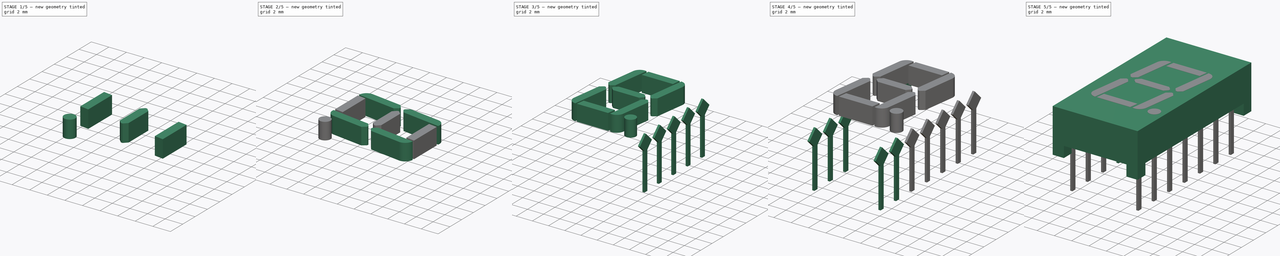
[diagram: build sequence overview — one tinted view per stage of 5, left to right]
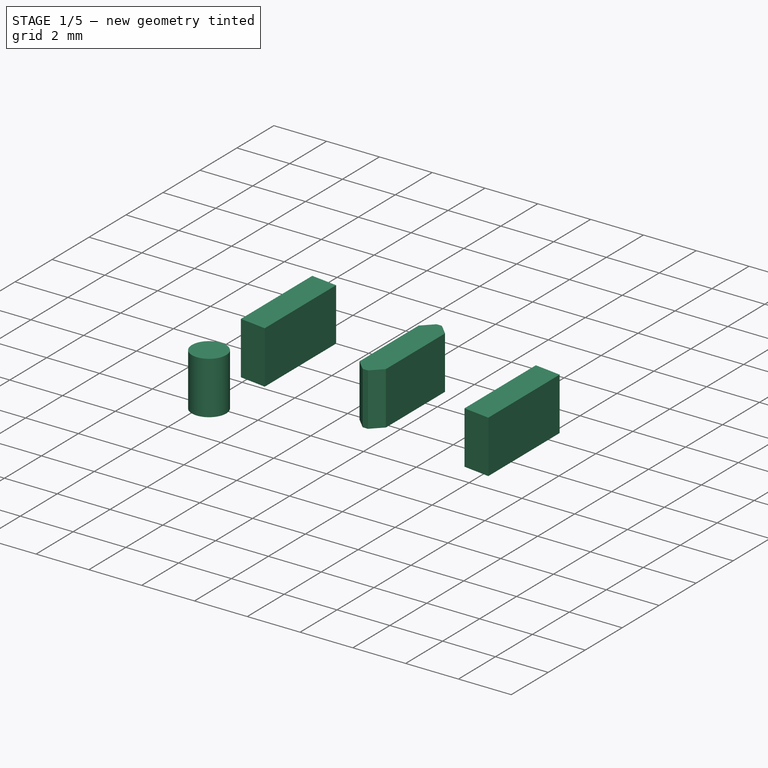
[diagram: stage 1 of 5 — iso view after this stage's code; geometry added in this stage tinted green]
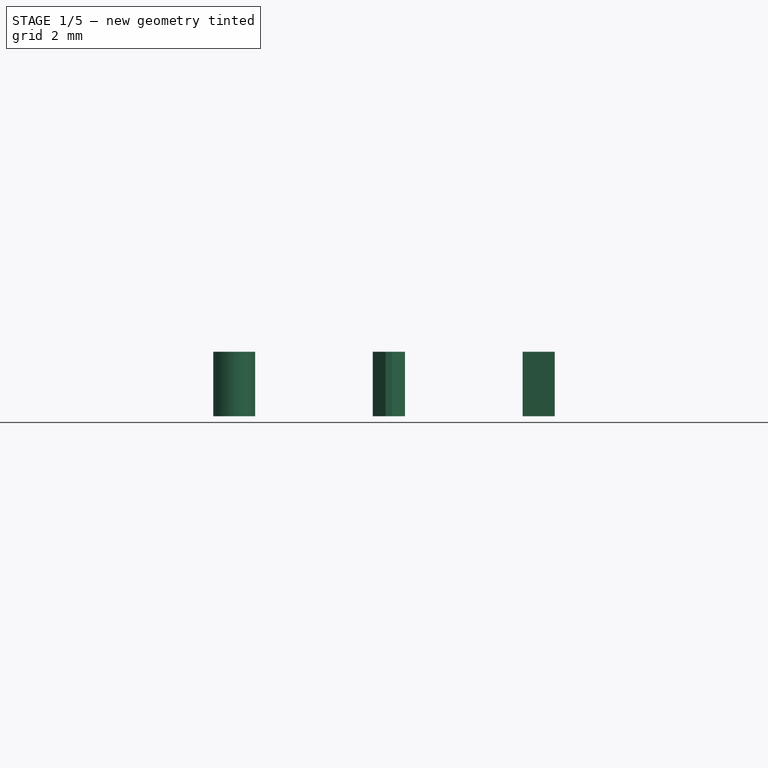
[diagram: stage 1 of 5 — front view after this stage's code; geometry added in this stage tinted green]
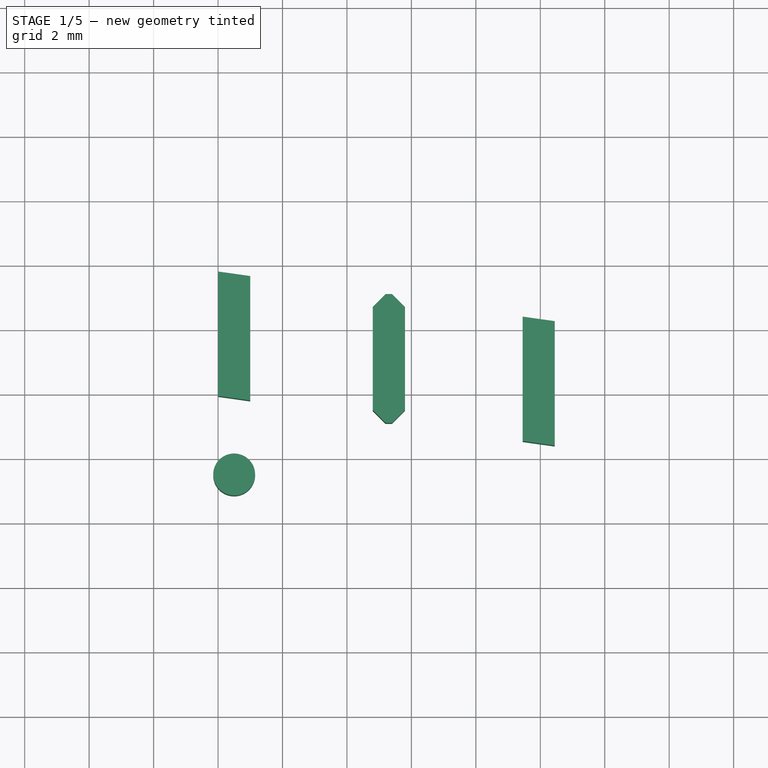
[diagram: stage 1 of 5 — top view after this stage's code; geometry added in this stage tinted green]
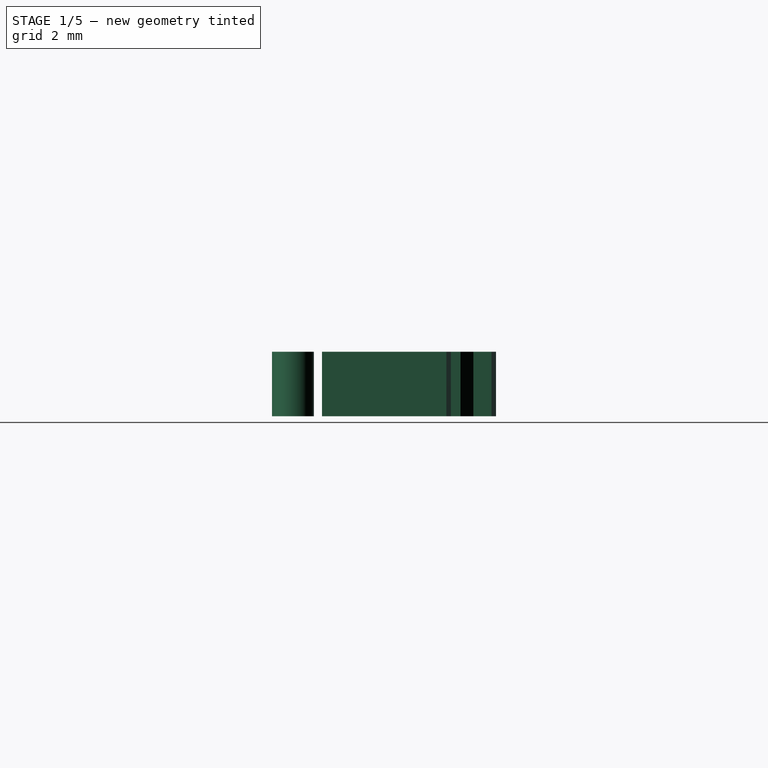
[diagram: stage 1 of 5 — right view after this stage's code; geometry added in this stage tinted green]
FCSTD DOCUMENT  (FreeCAD 0.17R11223 (Git))
Label: MANXXXX_A_2
License: All rights reserved
LicenseURL: http://en.wikipedia.org/wiki/All_rights_reserved
objects: Part::Box×41, Part::MultiFuse×15, Part::Chamfer×12, Part::Cut×6, Part::Fillet×4, Sketcher::SketchObject×1, PartDesign::Pad×1, PartDesign::Body×1, App::DocumentObjectGroup×1, Part::Cylinder×1
note: 83 computed .brp shape members not serialized (recipe doc carries the construction recipe); baked Part::Feature solids carry a one-line shape summary decoded from their .brp

FEATURE [Part::Box] Box034  label="Kub034"
  AttacherType = Attacher::AttachEngine3D
  Height = 2
  Length = 1
  Placement = pos=(-4,14,0) rot=(0,0,1;0rad)
  Width = 4
FEATURE [Part::Box] Box035  label="Kub035"
  AttacherType = Attacher::AttachEngine3D
  Height = 2
  Length = 3
  Placement = pos=(-5,18.14,0) rot=(0,0,-1;0.139626rad)
  Width = 1
FEATURE [Part::Box] Box036  label="Kub036"
  AttacherType = Attacher::AttachEngine3D
  Height = 2
  Length = 3
  Placement = pos=(-5,13.27,0) rot=(0,0,-1;0.139626rad)
  Width = 1
FEATURE [Part::Box] Box037  label="Kub037"
  AttacherType = Attacher::AttachEngine3D
  Height = 2
  Length = 1
  Placement = pos=(-10,14,0) rot=(0,0,1;0rad)
  Width = 4
FEATURE [Part::Cut] Cut002
  Base = -> Box034
  Tool = -> Box036
FEATURE [Part::Cut] Cut003
  Base = -> Cut002
  Placement = pos=(4,-0.2,0) rot=(0,0,1;0rad)
  Tool = -> Box035
FEATURE [Part::Box] Box038  label="Kub038"
  AttacherType = Attacher::AttachEngine3D
  Height = 2
  Length = 1
  Placement = pos=(-4,14,0) rot=(0,0,1;0rad)
  Width = 4
FEATURE [Part::Box] Box039  label="Kub039"
  AttacherType = Attacher::AttachEngine3D
  Height = 2
  Length = 3
  Placement = pos=(-5,18.14,0) rot=(0,0,-1;0.139626rad)
  Width = 1
FEATURE [Part::Box] Box040  label="Kub040"
  AttacherType = Attacher::AttachEngine3D
  Height = 2
  Length = 3
  Placement = pos=(-5,13.27,0) rot=(0,0,-1;0.139626rad)
  Width = 1
FEATURE [Part::Cut] Cut004
  Base = -> Box038
  Tool = -> Box040
FEATURE [Part::Cut] Cut005
  Base = -> Cut004
  Placement = pos=(13.45,-1.6,0) rot=(0,0,1;0rad)
  Tool = -> Box039
FEATURE [Part::Chamfer] Chamfer012
  Base = -> Box037
  Edges = 1 edges r=0.4: [Edge5]
FEATURE [Part::Chamfer] Chamfer013
  Base = -> Chamfer012
  Edges = 1 edges r=0.4: [Edge3]
FEATURE [Part::Chamfer] Chamfer014
  Base = -> Chamfer013
  Edges = 1 edges r=0.4: [Edge18]
FEATURE [Part::Chamfer] Chamfer015
  Base = -> Chamfer014
  Edges = 1 edges r=0.4: [Edge15]
  Placement = pos=(14.8,-0.9,0) rot=(0,0,1;0rad)
FEATURE [Part::Cylinder] Cylinder016  label="Cylinder"
  Angle = 360
  AttacherType = Attacher::AttachEngine3D
  Height = 2
  Placement = pos=(0.5,11.5,0) rot=(0,0,1;0rad)
  Radius = 0.65
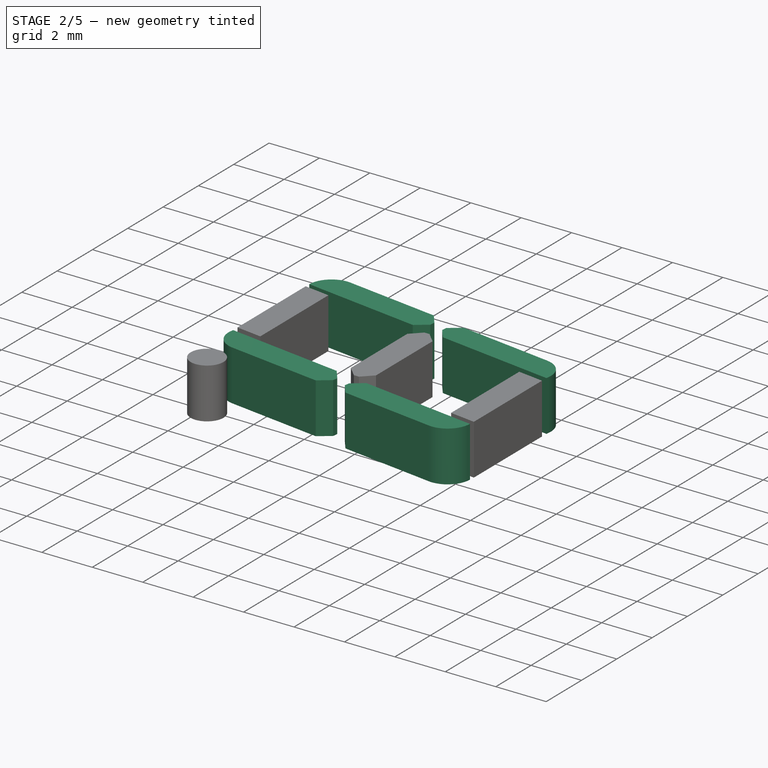
[diagram: stage 2 of 5 — iso view after this stage's code; geometry added in this stage tinted green]
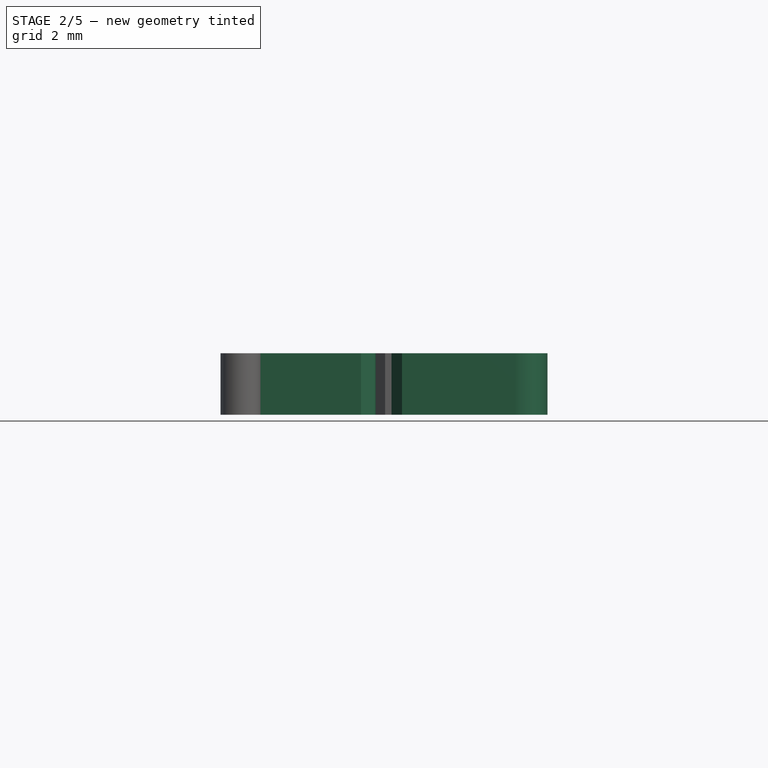
[diagram: stage 2 of 5 — front view after this stage's code; geometry added in this stage tinted green]
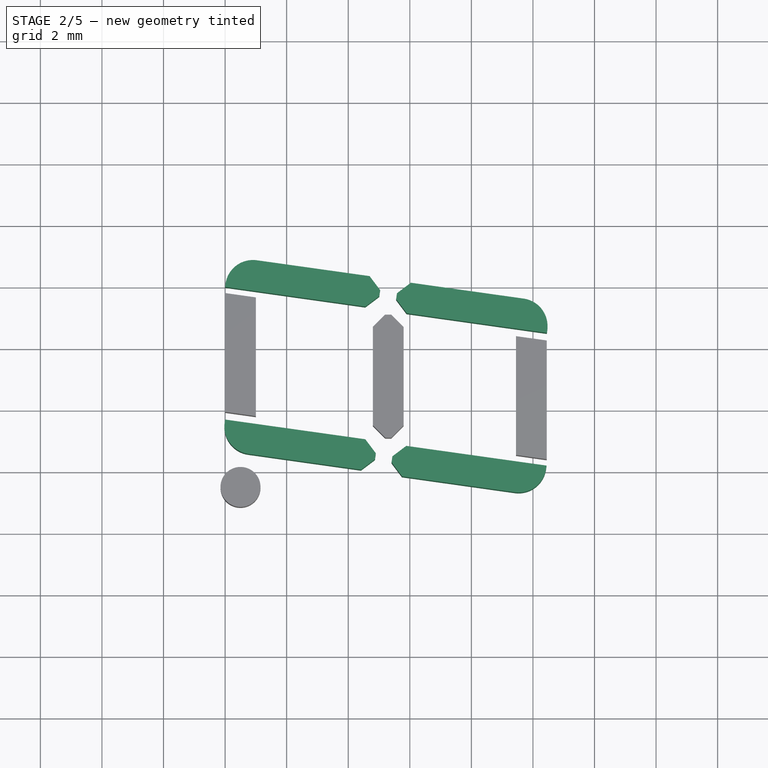
[diagram: stage 2 of 5 — top view after this stage's code; geometry added in this stage tinted green]
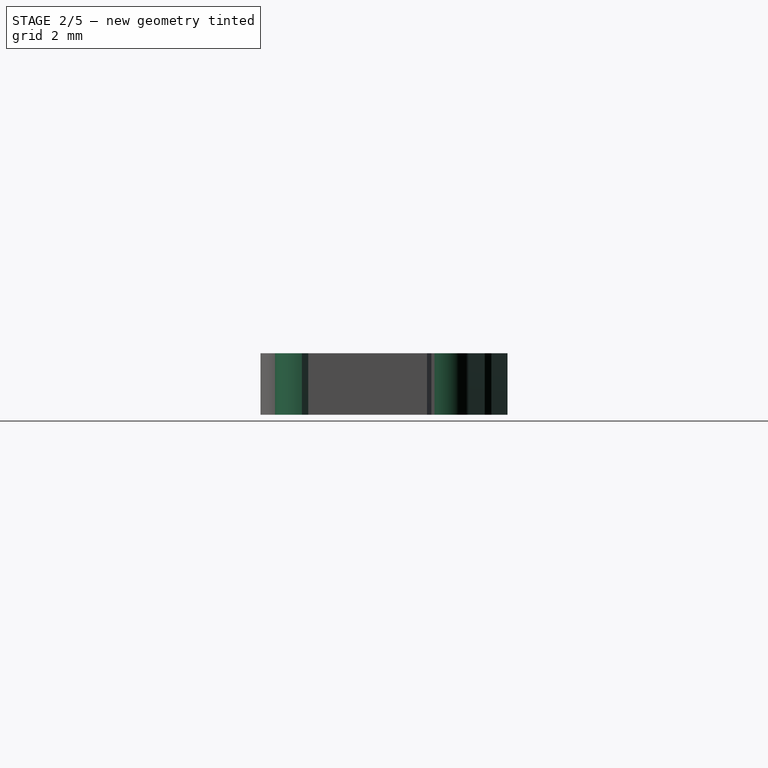
[diagram: stage 2 of 5 — right view after this stage's code; geometry added in this stage tinted green]
FEATURE [App::DocumentObjectGroup] Grupp  label="Legs"
  Group = -> [Fusion,Fusion001,Fusion002,Fusion003,Fusion004,Fusion005,Fusion006,Fusion007,Fusion008,Fusion009,Fusion010,Fusion011,Fusion012,Fusion013]
FEATURE [Part::Box] Box030  label="Kub030"
  AttacherType = Attacher::AttachEngine3D
  Height = 2
  Length = 5
  Placement = pos=(0,18,0) rot=(0,0,-1;0.139626rad)
  Width = 1
FEATURE [Part::Box] Box031  label="Kub031"
  AttacherType = Attacher::AttachEngine3D
  Height = 2
  Length = 5
  Placement = pos=(0,13,0) rot=(0,0,-1;0.139626rad)
  Width = 1
FEATURE [Part::Box] Box032  label="Kub032"
  AttacherType = Attacher::AttachEngine3D
  Height = 2
  Length = 5
  Placement = pos=(9,18,0) rot=(0,0,-1;0.139626rad)
  Width = 1
FEATURE [Part::Box] Box033  label="Kub033"
  AttacherType = Attacher::AttachEngine3D
  Height = 2
  Length = 5
  Placement = pos=(9,13,0) rot=(0,0,-1;0.139626rad)
  Width = 1
FEATURE [Part::Chamfer] Chamfer004
  Base = -> Box032
  Edges = 1 edges r=0.4: [Edge1]
FEATURE [Part::Chamfer] Chamfer005
  Base = -> Chamfer004
  Edges = 1 edges r=0.4: [Edge3]
FEATURE [Part::Chamfer] Chamfer006
  Base = -> Box033
  Edges = 1 edges r=0.4: [Edge3]
FEATURE [Part::Chamfer] Chamfer007
  Base = -> Chamfer006
  Edges = 1 edges r=0.4: [Edge3]
FEATURE [Part::Chamfer] Chamfer008
  Base = -> Box031
  Edges = 1 edges r=0.4: [Edge5]
FEATURE [Part::Chamfer] Chamfer009
  Base = -> Chamfer008
  Edges = 1 edges r=0.4: [Edge3]
FEATURE [Part::Chamfer] Chamfer010
  Base = -> Box030
  Edges = 1 edges r=0.4: [Edge5]
FEATURE [Part::Chamfer] Chamfer011
  Base = -> Chamfer010
  Edges = 1 edges r=0.4: [Edge3]
FEATURE [Part::Fillet] Fillet
  Base = -> Chamfer005
  Edges = 1 edges r=0.9: [Edge17]
  Placement = pos=(-3.5,-0.8,0) rot=(0,0,1;0rad)
FEATURE [Part::Fillet] Fillet001
  Base = -> Chamfer007
  Edges = 1 edges r=0.9: [Edge17]
  Placement = pos=(-3.65,-1.1,0) rot=(0,0,1;0rad)
FEATURE [Part::Fillet] Fillet002
  Base = -> Chamfer009
  Edges = 1 edges r=0.9: [Edge18]
  Placement = pos=(-0.14,-0.3,0) rot=(0,0,1;0rad)
FEATURE [Part::Fillet] Fillet003
  Base = -> Chamfer011
  Edges = 1 edges r=0.9: [Edge17]
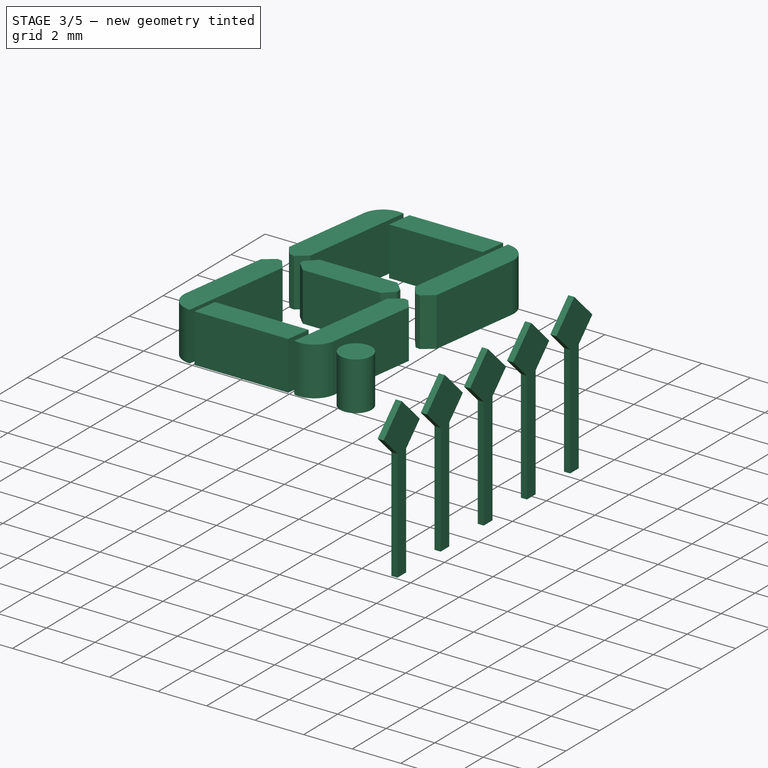
[diagram: stage 3 of 5 — iso view after this stage's code; geometry added in this stage tinted green]
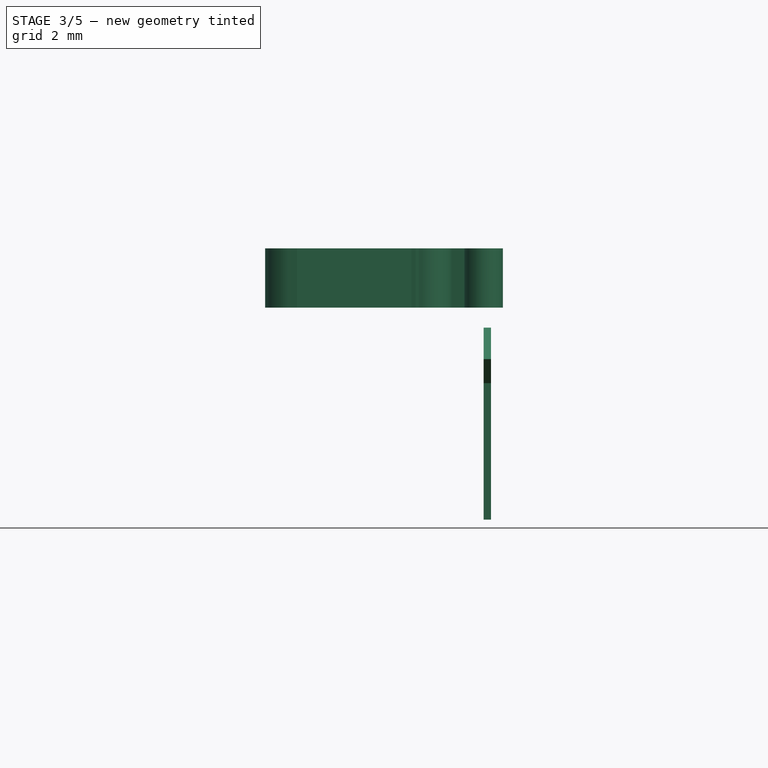
[diagram: stage 3 of 5 — front view after this stage's code; geometry added in this stage tinted green]
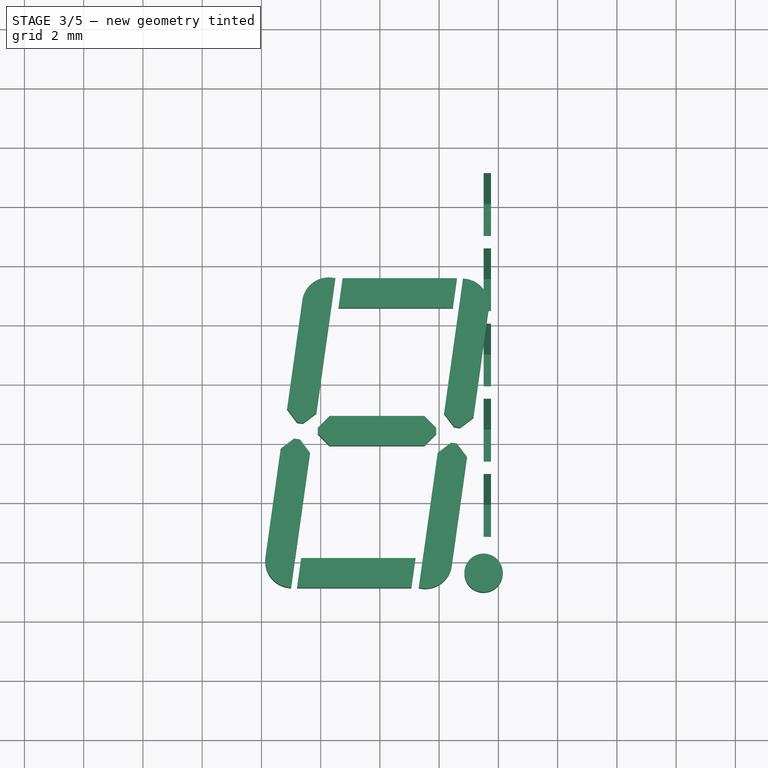
[diagram: stage 3 of 5 — top view after this stage's code; geometry added in this stage tinted green]
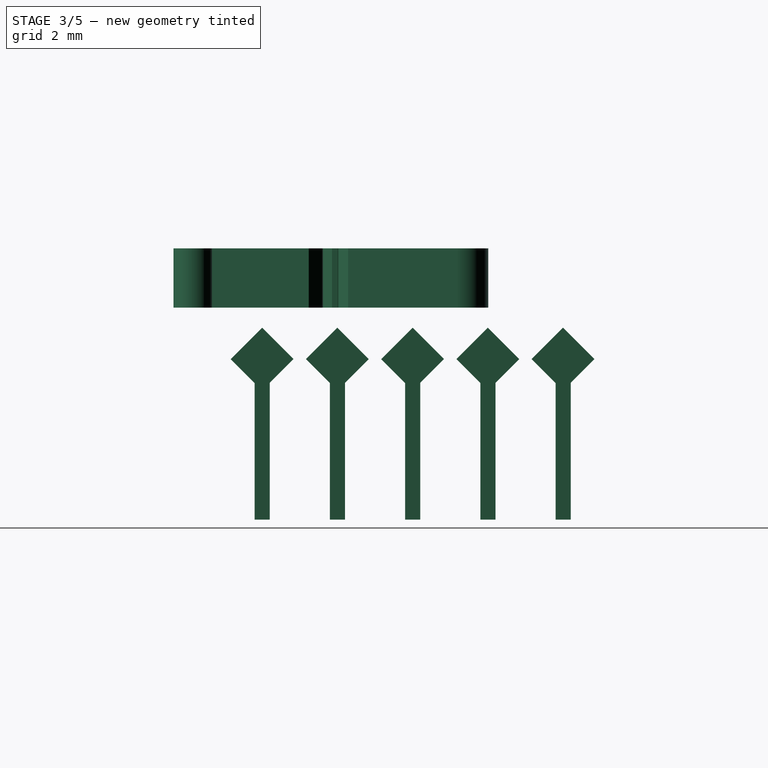
[diagram: stage 3 of 5 — right view after this stage's code; geometry added in this stage tinted green]
FEATURE [Part::Box] Box020  label="Kub020"
  AttacherType = Attacher::AttachEngine3D
  Height = 6
  Length = 0.25
  Placement = pos=(-0.12,-0.2505,-4.06) rot=(0,0,1;0rad)
  Width = 0.51
FEATURE [Part::Box] Box021  label="Kub021"
  AttacherType = Attacher::AttachEngine3D
  Height = 1.5
  Length = 0.25
  Placement = pos=(-0.12,0,0.3) rot=(1,0,0;0.785398rad)
  Width = 1.5
FEATURE [Part::MultiFuse] Fusion009  label="Leg010"
  Placement = pos=(7.62,-10.16,0) rot=(0,0,1;0rad)
  Shapes = -> [Box020,Box021]
FEATURE [Part::Box] Box022  label="Kub022"
  AttacherType = Attacher::AttachEngine3D
  Height = 6
  Length = 0.25
  Placement = pos=(-0.12,-0.2505,-4.06) rot=(0,0,1;0rad)
  Width = 0.51
FEATURE [Part::Box] Box023  label="Kub023"
  AttacherType = Attacher::AttachEngine3D
  Height = 1.5
  Length = 0.25
  Placement = pos=(-0.12,0,0.3) rot=(1,0,0;0.785398rad)
  Width = 1.5
FEATURE [Part::MultiFuse] Fusion010  label="Leg011"
  Placement = pos=(7.62,-7.62,0) rot=(0,0,1;0rad)
  Shapes = -> [Box022,Box023]
FEATURE [Part::Box] Box024  label="Kub024"
  AttacherType = Attacher::AttachEngine3D
  Height = 6
  Length = 0.25
  Placement = pos=(-0.12,-0.2505,-4.06) rot=(0,0,1;0rad)
  Width = 0.51
FEATURE [Part::Box] Box025  label="Kub025"
  AttacherType = Attacher::AttachEngine3D
  Height = 1.5
  Length = 0.25
  Placement = pos=(-0.12,0,0.3) rot=(1,0,0;0.785398rad)
  Width = 1.5
FEATURE [Part::MultiFuse] Fusion011  label="Leg012"
  Placement = pos=(7.62,-5.08,0) rot=(0,0,1;0rad)
  Shapes = -> [Box024,Box025]
FEATURE [Part::Box] Box026  label="Kub026"
  AttacherType = Attacher::AttachEngine3D
  Height = 6
  Length = 0.25
  Placement = pos=(-0.12,-0.2505,-4.06) rot=(0,0,1;0rad)
  Width = 0.51
FEATURE [Part::Box] Box027  label="Kub027"
  AttacherType = Attacher::AttachEngine3D
  Height = 1.5
  Length = 0.25
  Placement = pos=(-0.12,0,0.3) rot=(1,0,0;0.785398rad)
  Width = 1.5
FEATURE [Part::MultiFuse] Fusion012  label="Leg013"
  Placement = pos=(7.62,-2.54,0) rot=(0,0,1;0rad)
  Shapes = -> [Box026,Box027]
FEATURE [Part::Box] Box028  label="Kub028"
  AttacherType = Attacher::AttachEngine3D
  Height = 6
  Length = 0.25
  Placement = pos=(-0.12,-0.2505,-4.06) rot=(0,0,1;0rad)
  Width = 0.51
FEATURE [Part::Box] Box029  label="Kub029"
  AttacherType = Attacher::AttachEngine3D
  Height = 1.5
  Length = 0.25
  Placement = pos=(-0.12,0,0.3) rot=(1,0,0;0.785398rad)
  Width = 1.5
FEATURE [Part::MultiFuse] Fusion013  label="Leg014"
  Placement = pos=(7.62,0,0) rot=(0,0,1;0rad)
  Shapes = -> [Box028,Box029]
FEATURE [Part::MultiFuse] Fusion014  label="Digit001"
  Placement = pos=(19,-13,3.1) rot=(0,0,-1;4.71239rad)
  Shapes = -> [Fillet,Cut005,Cut003,Fillet003,Fillet001,Fillet002,Chamfer015,Cylinder016]
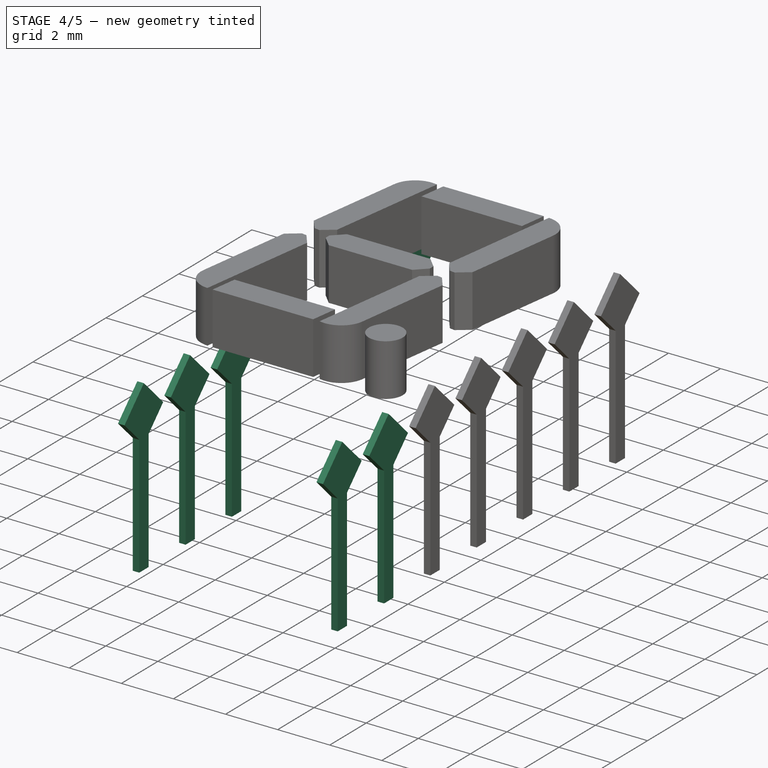
[diagram: stage 4 of 5 — iso view after this stage's code; geometry added in this stage tinted green]
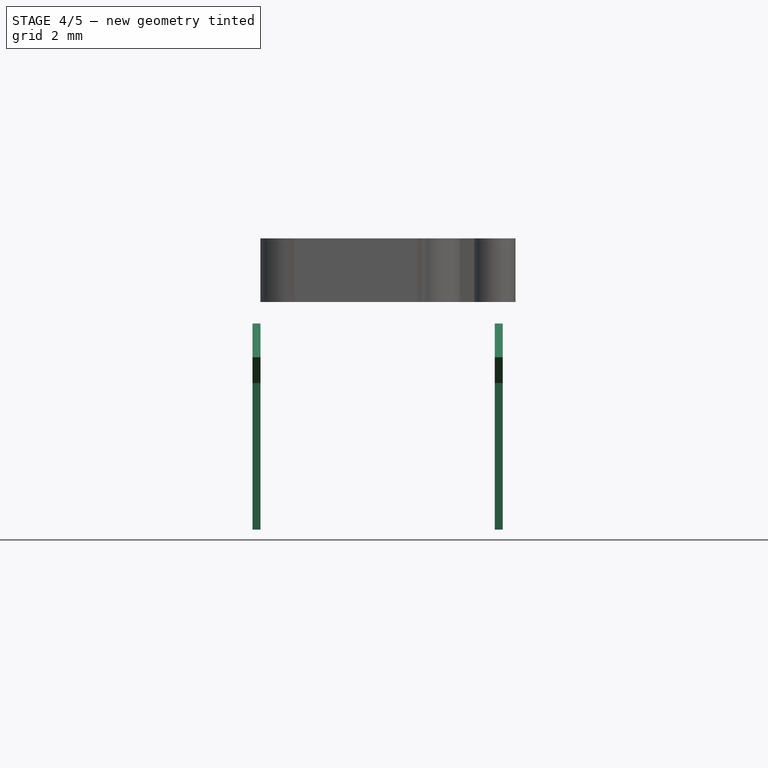
[diagram: stage 4 of 5 — front view after this stage's code; geometry added in this stage tinted green]
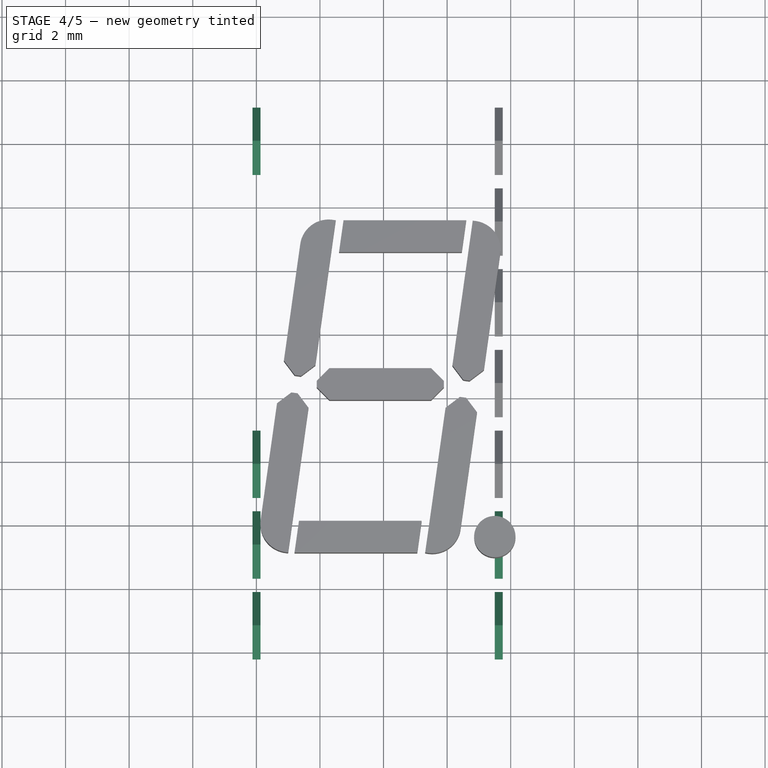
[diagram: stage 4 of 5 — top view after this stage's code; geometry added in this stage tinted green]
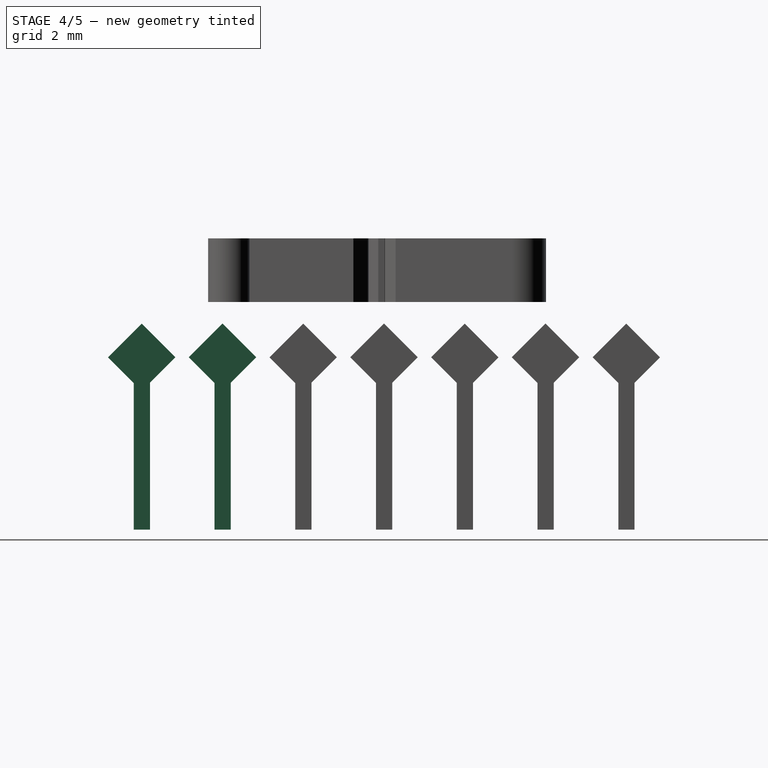
[diagram: stage 4 of 5 — right view after this stage's code; geometry added in this stage tinted green]
FEATURE [Part::Box] Box009  label="Kub009"
  AttacherType = Attacher::AttachEngine3D
  Height = 1.5
  Length = 0.25
  Placement = pos=(-0.12,0,0.3) rot=(1,0,0;0.785398rad)
  Width = 1.5
FEATURE [Part::Box] Box010  label="Kub010"
  AttacherType = Attacher::AttachEngine3D
  Height = 6
  Length = 0.25
  Placement = pos=(-0.12,-0.2505,-4.06) rot=(0,0,1;0rad)
  Width = 0.51
FEATURE [Part::Box] Box011  label="Kub011"
  AttacherType = Attacher::AttachEngine3D
  Height = 1.5
  Length = 0.25
  Placement = pos=(-0.12,0,0.3) rot=(1,0,0;0.785398rad)
  Width = 1.5
FEATURE [Part::MultiFuse] Fusion004  label="Leg005"
  Placement = pos=(0,-10.16,0) rot=(0,0,1;0rad)
  Shapes = -> [Box010,Box011]
FEATURE [Part::Box] Box012  label="Kub012"
  AttacherType = Attacher::AttachEngine3D
  Height = 6
  Length = 0.25
  Placement = pos=(-0.12,-0.2505,-4.06) rot=(0,0,1;0rad)
  Width = 0.51
FEATURE [Part::Box] Box013  label="Kub013"
  AttacherType = Attacher::AttachEngine3D
  Height = 1.5
  Length = 0.25
  Placement = pos=(-0.12,0,0.3) rot=(1,0,0;0.785398rad)
  Width = 1.5
FEATURE [Part::MultiFuse] Fusion005  label="Leg006"
  Placement = pos=(0,-12.7,0) rot=(0,0,1;0rad)
  Shapes = -> [Box012,Box013]
FEATURE [Part::Box] Box014  label="Kub014"
  AttacherType = Attacher::AttachEngine3D
  Height = 6
  Length = 0.25
  Placement = pos=(-0.12,-0.2505,-4.06) rot=(0,0,1;0rad)
  Width = 0.51
FEATURE [Part::Box] Box015  label="Kub015"
  AttacherType = Attacher::AttachEngine3D
  Height = 1.5
  Length = 0.25
  Placement = pos=(-0.12,0,0.3) rot=(1,0,0;0.785398rad)
  Width = 1.5
FEATURE [Part::MultiFuse] Fusion006  label="Leg007"
  Placement = pos=(0,-15.24,0) rot=(0,0,1;0rad)
  Shapes = -> [Box014,Box015]
FEATURE [Part::Box] Box016  label="Kub016"
  AttacherType = Attacher::AttachEngine3D
  Height = 6
  Length = 0.25
  Placement = pos=(-0.12,-0.2505,-4.06) rot=(0,0,1;0rad)
  Width = 0.51
FEATURE [Part::Box] Box017  label="Kub017"
  AttacherType = Attacher::AttachEngine3D
  Height = 1.5
  Length = 0.25
  Placement = pos=(-0.12,0,0.3) rot=(1,0,0;0.785398rad)
  Width = 1.5
FEATURE [Part::MultiFuse] Fusion007  label="Leg008"
  Placement = pos=(7.62,-15.24,0) rot=(0,0,1;0rad)
  Shapes = -> [Box016,Box017]
FEATURE [Part::Box] Box018  label="Kub018"
  AttacherType = Attacher::AttachEngine3D
  Height = 6
  Length = 0.25
  Placement = pos=(-0.12,-0.2505,-4.06) rot=(0,0,1;0rad)
  Width = 0.51
FEATURE [Part::Box] Box019  label="Kub019"
  AttacherType = Attacher::AttachEngine3D
  Height = 1.5
  Length = 0.25
  Placement = pos=(-0.12,0,0.3) rot=(1,0,0;0.785398rad)
  Width = 1.5
FEATURE [Part::MultiFuse] Fusion008  label="Leg009"
  Placement = pos=(7.62,-12.7,0) rot=(0,0,1;0rad)
  Shapes = -> [Box018,Box019]
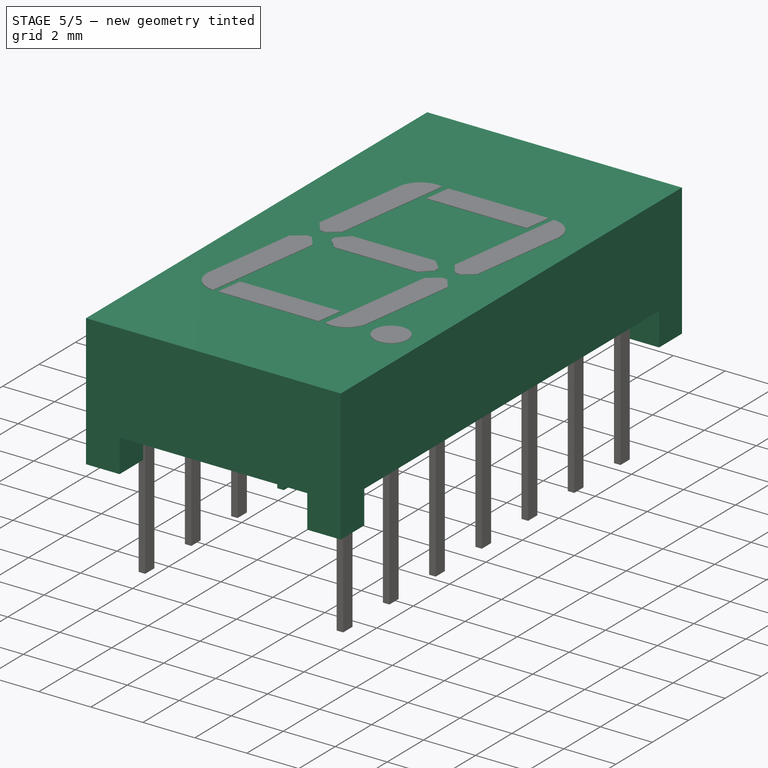
[diagram: stage 5 of 5 — iso view after this stage's code; geometry added in this stage tinted green]
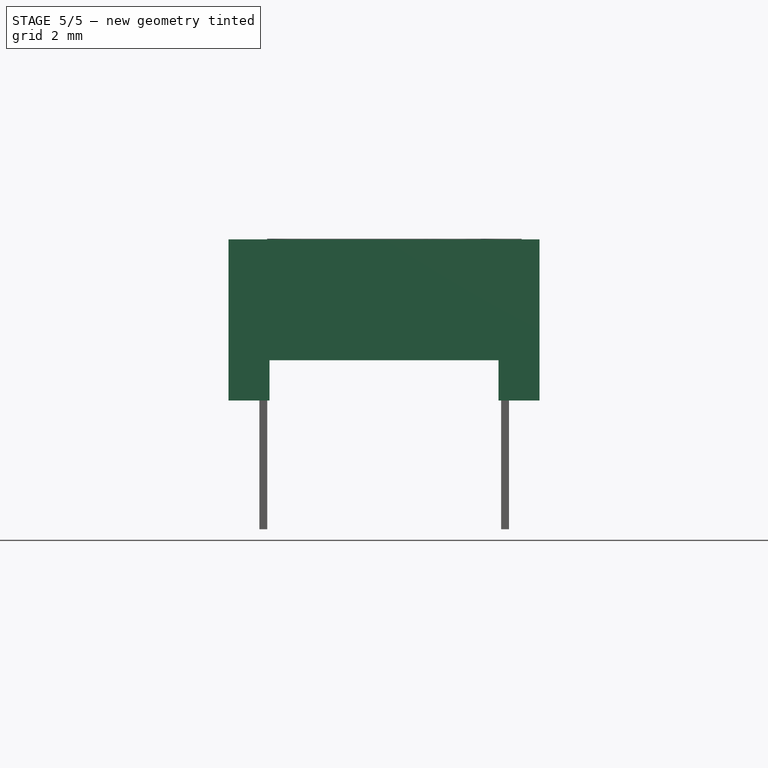
[diagram: stage 5 of 5 — front view after this stage's code; geometry added in this stage tinted green]
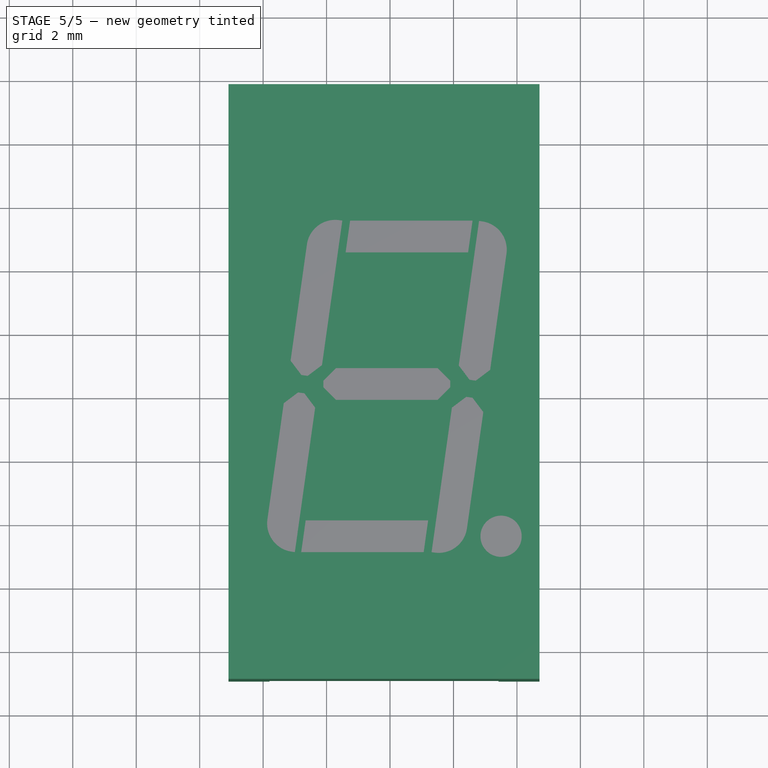
[diagram: stage 5 of 5 — top view after this stage's code; geometry added in this stage tinted green]
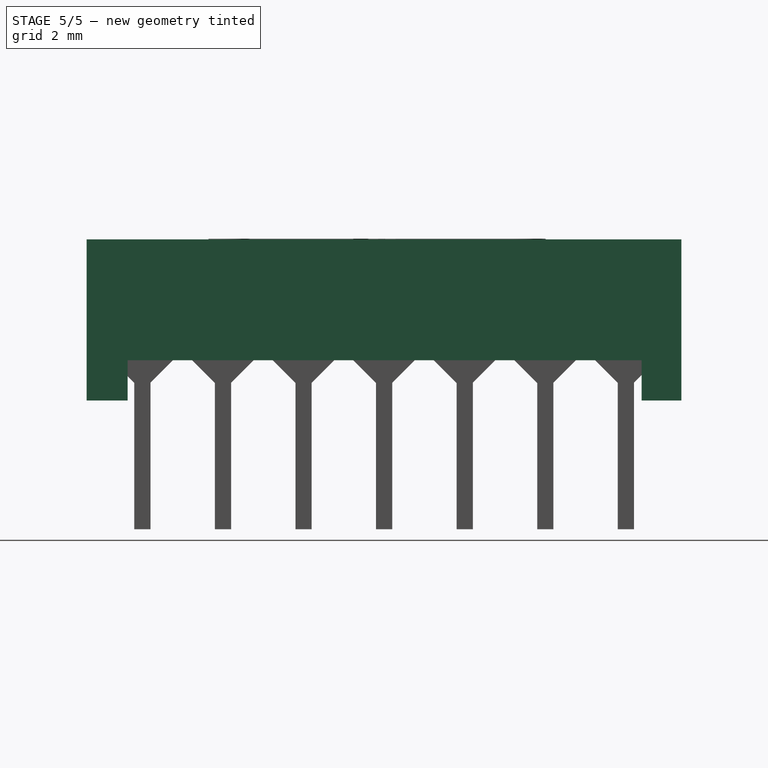
[diagram: stage 5 of 5 — right view after this stage's code; geometry added in this stage tinted green]
FEATURE [Sketcher::SketchObject] Sketch
  MapMode = 5
  Support = -> [XY_Plane]
  sketch-geometry (4):
    g0: LineSegment StartX=-1.09 StartY=1.755 StartZ=0 EndX=8.71 EndY=1.755 EndZ=0
    g1: LineSegment StartX=8.71 StartY=1.755 StartZ=0 EndX=8.71 EndY=-16.995 EndZ=0
    g2: LineSegment StartX=8.71 StartY=-16.995 StartZ=0 EndX=-1.09 EndY=-16.995 EndZ=0
    g3: LineSegment StartX=-1.09 StartY=-16.995 StartZ=0 EndX=-1.09 EndY=1.755 EndZ=0
  constraints (12):
    c: Coincident(g0,g1)
    c: Coincident(g1,g2)
    c: Coincident(g2,g3)
    c: Coincident(g3,g0)
    c: Horizontal(g0)
    c: Horizontal(g2)
    c: Vertical(g1)
    c: Vertical(g3)
    c: DistanceY(g1,g0) = 18.75
    c: DistanceX(g2,g1) = 9.8
    c: DistanceX(g0,g-1) = 1.09
    c: DistanceY(g-1,g0) = 1.755
FEATURE [PartDesign::Pad] Pad
  Length = 5.08
  Length2 = 100
  Profile = -> Sketch
  Type = 0
FEATURE [PartDesign::Body] Body
  Group = -> [Sketch,Pad]
  Origin = -> BodyOrigin
  Tip = -> Pad
FEATURE [Part::Box] Box  label="Kub"
  AttacherType = Attacher::AttachEngine3D
  Height = 2.54
  Length = 7.22
  Placement = pos=(0.2,-18,-1.27) rot=(0,0,1;0rad)
  Width = 22
FEATURE [Part::Box] Box001  label="Kub001"
  AttacherType = Attacher::AttachEngine3D
  Height = 2.54
  Length = 20
  Placement = pos=(-6,-15.7,-1.27) rot=(0,0,1;0rad)
  Width = 16.2
FEATURE [Part::Cut] Cut
  Base = -> Body
  Tool = -> Box
FEATURE [Part::Cut] Cut001
  Base = -> Cut
  Tool = -> Box001
FEATURE [Part::Box] Box002  label="Kub002"
  AttacherType = Attacher::AttachEngine3D
  Height = 6
  Length = 0.25
  Placement = pos=(-0.12,-0.2505,-4.06) rot=(0,0,1;0rad)
  Width = 0.51
FEATURE [Part::Box] Box003  label="Kub003"
  AttacherType = Attacher::AttachEngine3D
  Height = 1.5
  Length = 0.25
  Placement = pos=(-0.12,0,0.3) rot=(1,0,0;0.785398rad)
  Width = 1.5
FEATURE [Part::MultiFuse] Fusion  label="Leg001"
  Shapes = -> [Box002,Box003]
FEATURE [Part::Box] Box004  label="Kub004"
  AttacherType = Attacher::AttachEngine3D
  Height = 6
  Length = 0.25
  Placement = pos=(-0.12,-0.2505,-4.06) rot=(0,0,1;0rad)
  Width = 0.51
FEATURE [Part::Box] Box005  label="Kub005"
  AttacherType = Attacher::AttachEngine3D
  Height = 1.5
  Length = 0.25
  Placement = pos=(-0.12,0,0.3) rot=(1,0,0;0.785398rad)
  Width = 1.5
FEATURE [Part::MultiFuse] Fusion001  label="Leg002"
  Placement = pos=(0,-2.54,0) rot=(0,0,1;0rad)
  Shapes = -> [Box004,Box005]
FEATURE [Part::Box] Box006  label="Kub006"
  AttacherType = Attacher::AttachEngine3D
  Height = 6
  Length = 0.25
  Placement = pos=(-0.12,-0.2505,-4.06) rot=(0,0,1;0rad)
  Width = 0.51
FEATURE [Part::Box] Box007  label="Kub007"
  AttacherType = Attacher::AttachEngine3D
  Height = 1.5
  Length = 0.25
  Placement = pos=(-0.12,0,0.3) rot=(1,0,0;0.785398rad)
  Width = 1.5
FEATURE [Part::MultiFuse] Fusion002  label="Leg003"
  Placement = pos=(0,-5.08,0) rot=(0,0,1;0rad)
  Shapes = -> [Box006,Box007]
FEATURE [Part::Box] Box008  label="Kub008"
  AttacherType = Attacher::AttachEngine3D
  Height = 6
  Length = 0.25
  Placement = pos=(-0.12,-0.2505,-4.06) rot=(0,0,1;0rad)
  Width = 0.51
FEATURE [Part::MultiFuse] Fusion003  label="Leg004"
  Placement = pos=(0,-7.62,0) rot=(0,0,1;0rad)
  Shapes = -> [Box008,Box009]
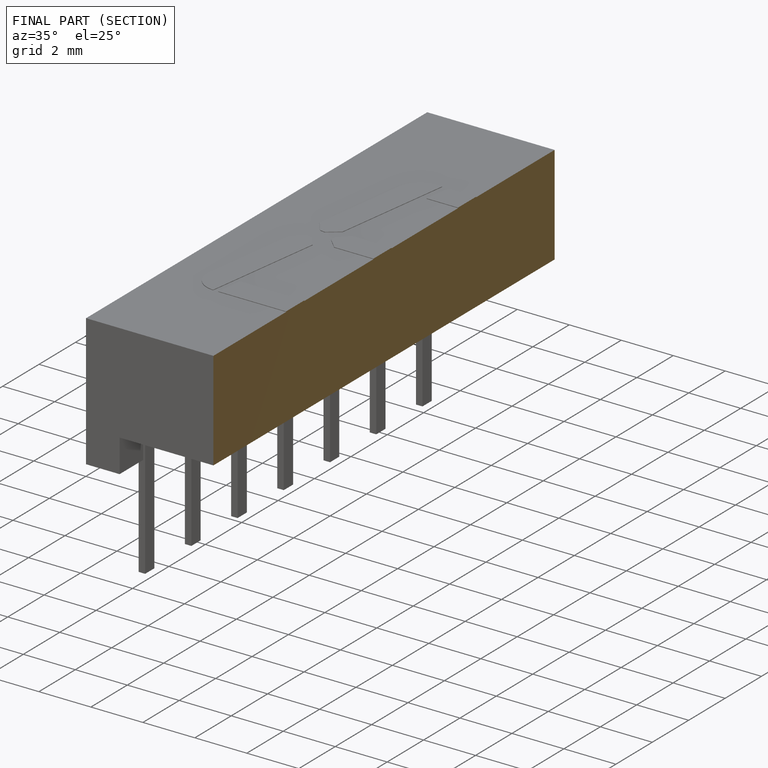
[diagram: finished part — half-section view (interior)]
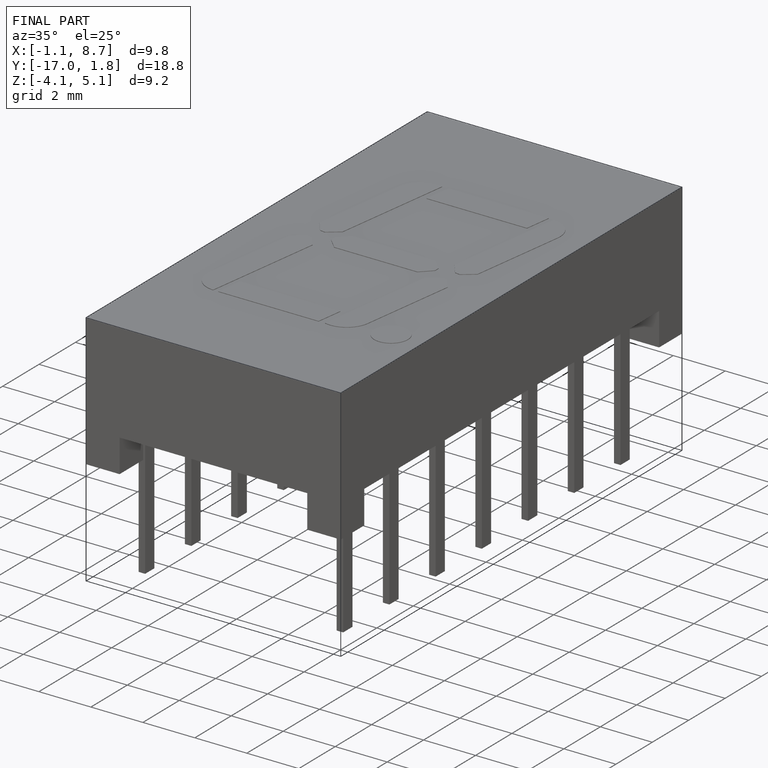
[diagram: finished part — iso view with bounding-box wireframe]
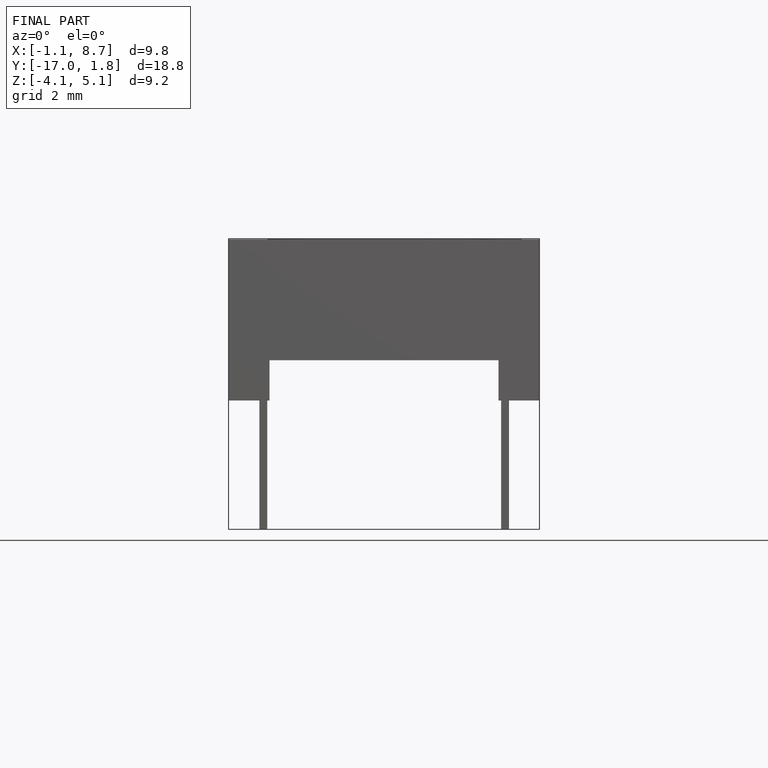
[diagram: finished part — front view with bounding-box wireframe]
